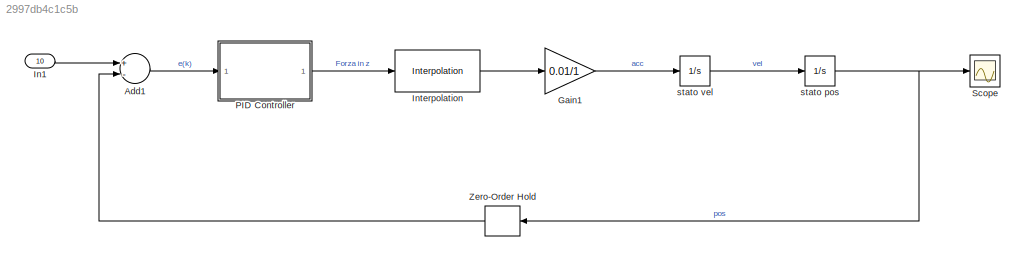
MODEL slx_2997db4c1c5b
KIND model
BLOCK [Sum] Add1
  InputSameDT = off
  Inputs = +-
  OutDataTypeStr = Inherit: Inherit via internal rule
  Ports = [2, 1]
  SaturateOnIntegerOverflow = off
BLOCK [Gain] Gain1
  Gain = 0.01/1
  OutDataTypeStr = Inherit: Inherit via internal rule
  ParamDataTypeStr = Inherit: Inherit via internal rule
  SaturateOnIntegerOverflow = off
BLOCK [Inport] In1
  IconDisplay = Port number
  Port = 10
BLOCK [Reference] Interpolation  REF=dspsigops/Interpolation
  InterpAlpha = 0.5
  InterpL = 3
  InterpMode = FIR
  InterpPoints = [1.1 4.8 2.67 1.6 3.2]'
  InterpR = 3
  InterpSource = Specify via dialog
  InvalidMode = Clip
  Ports = [1, 1]
  SourceBlock = dspsigops/Interpolation
  SourceType = Interpolation
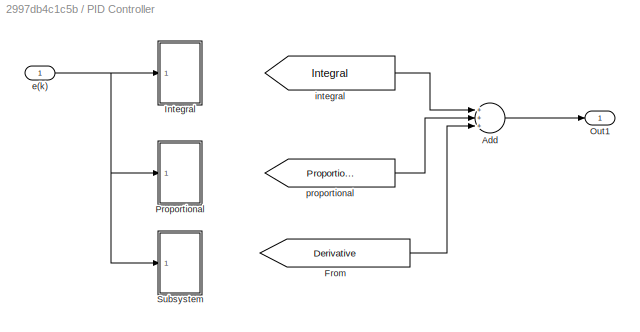
BLOCK [SubSystem] PID Controller
  FunctionWithSeparateData = off
  MaskHideContents = off
  MinAlgLoopOccurrences = off
  Opaque = off
  Ports = [1, 1]
  PropExecContextOutsideSubsystem = off
  RTWSystemCode = Auto
  RequestExecContextInheritance = off
BLOCK [Sum] PID Controller/Add
  InputSameDT = off
  Inputs = +++
  OutDataTypeStr = Inherit: Inherit via internal rule
  Ports = [3, 1]
  SaturateOnIntegerOverflow = off
BLOCK [From] PID Controller/From
  GotoTag = Derivative
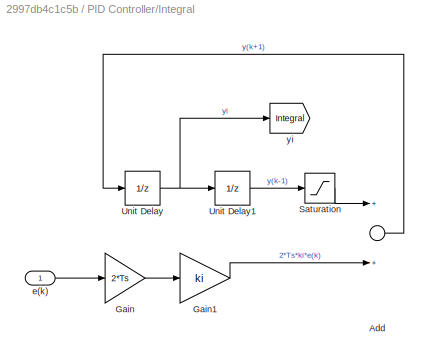
BLOCK [SubSystem] PID Controller/Integral
  FunctionWithSeparateData = off
  MaskHideContents = off
  MinAlgLoopOccurrences = off
  Opaque = off
  Ports = [1]
  PropExecContextOutsideSubsystem = off
  RTWSystemCode = Auto
  RequestExecContextInheritance = off
BLOCK [Sum] PID Controller/Integral/Add
  InputSameDT = off
  OutDataTypeStr = Inherit: Inherit via internal rule
  Ports = [2, 1]
  SaturateOnIntegerOverflow = off
BLOCK [Gain] PID Controller/Integral/Gain
  Gain = 2*Ts
  OutDataTypeStr = Inherit: Inherit via internal rule
  ParamDataTypeStr = Inherit: Inherit via internal rule
  SaturateOnIntegerOverflow = off
BLOCK [Gain] PID Controller/Integral/Gain1
  Gain = ki
  OutDataTypeStr = Inherit: Inherit via internal rule
  ParamDataTypeStr = Inherit: Inherit via internal rule
  SaturateOnIntegerOverflow = off
BLOCK [Saturate] PID Controller/Integral/Saturation
  AttributesFormatString = %<LowerLimit>\n%<UpperLimit>
  InputPortMap = u0
  LowerLimit = -1
  Ports = [1, 1]
  UpperLimit = 1
BLOCK [UnitDelay] PID Controller/Integral/Unit Delay
  InputProcessing = Elements as channels (sample based)
  SampleTime = Ts
BLOCK [UnitDelay] PID Controller/Integral/Unit Delay1
  InputProcessing = Elements as channels (sample based)
  SampleTime = Ts
BLOCK [Inport] PID Controller/Integral/e(k)
  IconDisplay = Port number
BLOCK [Goto] PID Controller/Integral/yi
  GotoTag = Integral
  TagVisibility = global
BLOCK [Outport] PID Controller/Out1
  IconDisplay = Port number
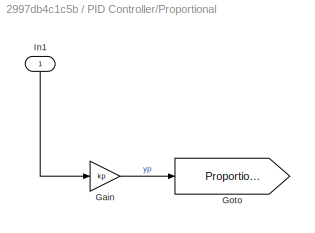
BLOCK [SubSystem] PID Controller/Proportional
  FunctionWithSeparateData = off
  MaskHideContents = off
  MinAlgLoopOccurrences = off
  Opaque = off
  Ports = [1]
  PropExecContextOutsideSubsystem = off
  RTWSystemCode = Auto
  RequestExecContextInheritance = off
BLOCK [Gain] PID Controller/Proportional/Gain
  Gain = kp
  OutDataTypeStr = Inherit: Inherit via internal rule
  ParamDataTypeStr = Inherit: Inherit via internal rule
  SaturateOnIntegerOverflow = off
BLOCK [Goto] PID Controller/Proportional/Goto
  GotoTag = Proportional
  TagVisibility = global
BLOCK [Inport] PID Controller/Proportional/In1
  IconDisplay = Port number
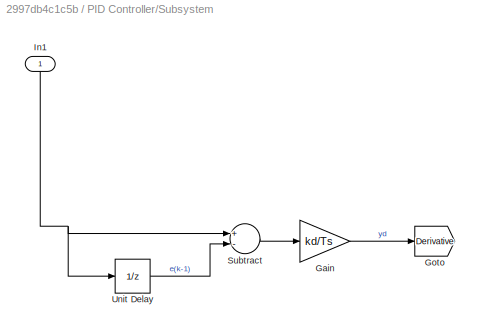
BLOCK [SubSystem] PID Controller/Subsystem
  FunctionWithSeparateData = off
  MaskHideContents = off
  MinAlgLoopOccurrences = off
  Opaque = off
  Ports = [1]
  PropExecContextOutsideSubsystem = off
  RTWSystemCode = Auto
  RequestExecContextInheritance = off
BLOCK [Gain] PID Controller/Subsystem/Gain
  Gain = kd/Ts
  OutDataTypeStr = Inherit: Inherit via internal rule
  ParamDataTypeStr = Inherit: Inherit via internal rule
  SaturateOnIntegerOverflow = off
BLOCK [Goto] PID Controller/Subsystem/Goto
  GotoTag = Derivative
  TagVisibility = global
BLOCK [Inport] PID Controller/Subsystem/In1
  IconDisplay = Port number
BLOCK [Sum] PID Controller/Subsystem/Subtract
  InputSameDT = off
  Inputs = +-
  OutDataTypeStr = Inherit: Inherit via internal rule
  Ports = [2, 1]
  SaturateOnIntegerOverflow = off
BLOCK [UnitDelay] PID Controller/Subsystem/Unit Delay
  InputProcessing = Elements as channels (sample based)
  SampleTime = -1
BLOCK [Inport] PID Controller/e(k)
  IconDisplay = Port number
BLOCK [From] PID Controller/integral
  GotoTag = Integral
  TagVisibility = global
BLOCK [From] PID Controller/proportional
  GotoTag = Proportional
  TagVisibility = global
BLOCK [Scope] Scope
  DataFormat = StructureWithTime
  Floating = off
  NumInputPorts = 1
  Ports = [1]
  SampleTime = 0
  ShowLegends = off
BLOCK [ZeroOrderHold] Zero-Order Hold
  SampleTime = 0.1
BLOCK [Integrator] stato pos
  InitialCondition = x0
  Ports = [1, 1]
BLOCK [Integrator] stato vel
  Ports = [1, 1]
LINE Add1:1 -> PID Controller:1
LINE Gain1:1 -> stato vel:1
LINE In1:1 -> Add1:1
LINE Interpolation:1 -> Gain1:1
LINE PID Controller/Add:1 -> PID Controller/Out1:1
LINE PID Controller/From:1 -> PID Controller/Add:3
LINE PID Controller/Integral/Add:1 -> PID Controller/Integral/Unit Delay:1
LINE PID Controller/Integral/Gain1:1 -> PID Controller/Integral/Add:2
LINE PID Controller/Integral/Gain:1 -> PID Controller/Integral/Gain1:1
LINE PID Controller/Integral/Saturation:1 -> PID Controller/Integral/Add:1
LINE PID Controller/Integral/Unit Delay1:1 -> PID Controller/Integral/Saturation:1
NET PID Controller/Integral/Unit Delay:1 -> PID Controller/Integral/Unit Delay1:1, PID Controller/Integral/yi:1
LINE PID Controller/Integral/e(k):1 -> PID Controller/Integral/Gain:1
LINE PID Controller/Proportional/Gain:1 -> PID Controller/Proportional/Goto:1
LINE PID Controller/Proportional/In1:1 -> PID Controller/Proportional/Gain:1
LINE PID Controller/Subsystem/Gain:1 -> PID Controller/Subsystem/Goto:1
NET PID Controller/Subsystem/In1:1 -> PID Controller/Subsystem/Subtract:1, PID Controller/Subsystem/Unit Delay:1
LINE PID Controller/Subsystem/Subtract:1 -> PID Controller/Subsystem/Gain:1
LINE PID Controller/Subsystem/Unit Delay:1 -> PID Controller/Subsystem/Subtract:2
NET PID Controller/e(k):1 -> PID Controller/Integral:1, PID Controller/Proportional:1, PID Controller/Subsystem:1
LINE PID Controller/integral:1 -> PID Controller/Add:1
LINE PID Controller/proportional:1 -> PID Controller/Add:2
LINE PID Controller:1 -> Interpolation:1
LINE Zero-Order Hold:1 -> Add1:2
NET stato pos:1 -> Scope:1, Zero-Order Hold:1
LINE stato vel:1 -> stato pos:1
note: NET lines group one-source signal fan-out (src -> all destinations, sorted); 1:1 wires keep LINE
